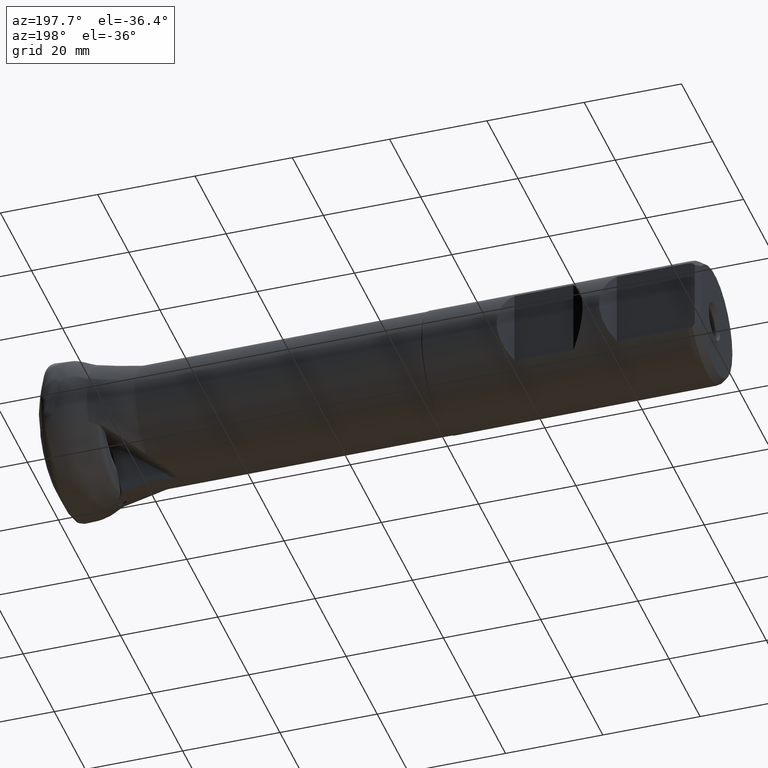
[diagram: clean part render]
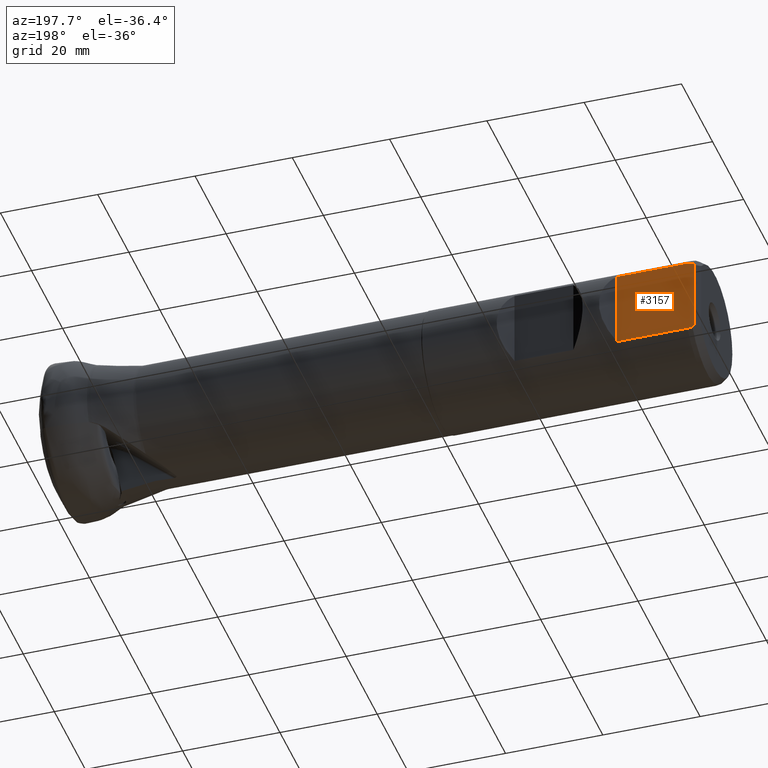
[diagram: same view with one face highlighted and labeled with its STEP entity id]
A machine part, auxiliary view. The second image highlights one B-rep face of the part: STEP entity #3157.
In plain terms, the highlighted planar face has unit normal (0, -1, 0).
Its self-contained STEP definition (entity closure, byte-faithful):
#12 = ORIENTED_EDGE ( 'NONE', *, *, #1830, .F. ) ;
#376 = CARTESIAN_POINT ( 'NONE',  ( -133.4052591770394500, 9.700000000000013500, 7.724635913750174300 ) ) ;
#420 = CARTESIAN_POINT ( 'NONE',  ( -133.5739917641605500, 9.700000000000013500, 7.544063512784151500 ) ) ;
#476 = ORIENTED_EDGE ( 'NONE', *, *, #2689, .F. ) ;
#496 = EDGE_LOOP ( 'NONE', ( #476, #2586, #12, #3966, #5950, #4550, #3928, #5791 ) ) ;
#733 = EDGE_CURVE ( 'NONE', #3868, #4274, #2509, .T. ) ;
#868 = CARTESIAN_POINT ( 'NONE',  ( -133.9052591770394500, 9.700000000000013500, 7.177356368778379000 ) ) ;
#1072 = LINE ( 'NONE', #4202, #5765 ) ;
#1143 = CARTESIAN_POINT ( 'NONE',  ( -132.7386441568087900, 9.700000000000013500, 7.831304577633790800 ) ) ;
#1195 = CARTESIAN_POINT ( 'NONE',  ( -133.0719785402211500, 9.700000000000013500, 7.778135909642421600 ) ) ;
#1206 = CARTESIAN_POINT ( 'NONE',  ( -133.4052591770394500, 9.700000000000013500, 7.724635913750174300 ) ) ;
#1211 = CARTESIAN_POINT ( 'NONE',  ( -132.4052591770392000, 9.700000000000020600, 7.884161337770784400 ) ) ;
#1281 = B_SPLINE_CURVE_WITH_KNOTS ( 'NONE', 3,
 ( #4594, #4538, #4522, #4506 ),
 .UNSPECIFIED., .F., .F.,
 ( 4, 4 ),
 ( 0.01937324663784086700, 0.02011357443876819400 ),
 .UNSPECIFIED. ) ;
#1398 = EDGE_CURVE ( 'NONE', #2560, #5427, #5463, .T. ) ;
#1520 = VECTOR ( 'NONE', #4484, 1000.000000000000000 ) ;
#1599 = EDGE_CURVE ( 'Kante182', #2927, #2643, #4388, .T. ) ;
#1830 = EDGE_CURVE ( 'NONE', #2560, #2927, #4899, .T. ) ;
#2041 = CARTESIAN_POINT ( 'NONE',  ( -132.4052591770392000, 9.700000000000020600, 7.884161337770784400 ) ) ;
#2113 = CARTESIAN_POINT ( 'NONE',  ( -133.4052591770394500, 9.700000000000013500, 7.724635913750174300 ) ) ;
#2220 = VECTOR ( 'NONE', #2487, 1000.000000000000000 ) ;
#2487 = DIRECTION ( 'NONE',  ( -0.0000000000000000000, -0.0000000000000000000, 1.000000000000000000 ) ) ;
#2509 = B_SPLINE_CURVE_WITH_KNOTS ( 'NONE', 3,
 ( #1206, #1195, #1143, #1211 ),
 .UNSPECIFIED., .F., .F.,
 ( 4, 4 ),
 ( 0.02156378377327071800, 0.02257556955679657100 ),
 .UNSPECIFIED. ) ;
#2539 = CARTESIAN_POINT ( 'NONE',  ( -133.9052591770394500, 9.700000000000013500, -35.00000000000000000 ) ) ;
#2560 = VERTEX_POINT ( 'NONE', #3598 ) ;
#2586 = ORIENTED_EDGE ( 'NONE', *, *, #1599, .F. ) ;
#2643 = VERTEX_POINT ( 'NONE', #4819 ) ;
#2649 = LINE ( 'NONE', #2539, #2220 ) ;
#2651 = CARTESIAN_POINT ( 'NONE',  ( -117.9052591770394700, 9.700000000000015300, -7.884161337770788000 ) ) ;
#2666 = CARTESIAN_POINT ( 'NONE',  ( -74.90525917703946800, 9.700000000000020600, -7.884161337770784400 ) ) ;
#2689 = EDGE_CURVE ( 'NONE', #2643, #4274, #1072, .T. ) ;
#2747 = DIRECTION ( 'NONE',  ( 1.000000000000000000, 0.0000000000000000000, 0.0000000000000000000 ) ) ;
#2927 = VERTEX_POINT ( 'NONE', #2651 ) ;
#3157 = ADVANCED_FACE ( 'NONE', ( #4396 ), #5700, .F. ) ;
#3306 = VERTEX_POINT ( 'NONE', #5424 ) ;
#3528 = EDGE_CURVE ( 'Kante183', #3306, #5300, #2649, .T. ) ;
#3598 = CARTESIAN_POINT ( 'NONE',  ( -132.4052591770392000, 9.700000000000020600, -7.884161337770784400 ) ) ;
#3636 = CARTESIAN_POINT ( 'NONE',  ( -133.7407601716286400, 9.700000000000013500, 7.361728307720987600 ) ) ;
#3747 = DIRECTION ( 'NONE',  ( 1.000000000000000000, 1.084202172485504300E-016, 0.0000000000000000000 ) ) ;
#3757 = CARTESIAN_POINT ( 'NONE',  ( -133.0719907667367500, 9.700000000000013500, -7.778133946976539400 ) ) ;
#3855 = DIRECTION ( 'NONE',  ( 1.084202172485504300E-016, -1.000000000000000000, 0.0000000000000000000 ) ) ;
#3868 = VERTEX_POINT ( 'NONE', #2113 ) ;
#3928 = ORIENTED_EDGE ( 'NONE', *, *, #4915, .T. ) ;
#3966 = ORIENTED_EDGE ( 'NONE', *, *, #1398, .T. ) ;
#3997 = EDGE_CURVE ( 'NONE', #5427, #3306, #1281, .T. ) ;
#4163 = CARTESIAN_POINT ( 'NONE',  ( -132.7386561443100300, 9.700000000000013500, -7.831302677066831900 ) ) ;
#4201 = CARTESIAN_POINT ( 'NONE',  ( -132.4052591770392000, 9.700000000000020600, -7.884161337770784400 ) ) ;
#4202 = CARTESIAN_POINT ( 'NONE',  ( -74.90525917703946800, 9.700000000000020600, 7.884161337770784400 ) ) ;
#4229 = DIRECTION ( 'NONE',  ( -1.000000000000000000, -0.0000000000000000000, -0.0000000000000000000 ) ) ;
#4274 = VERTEX_POINT ( 'NONE', #2041 ) ;
#4388 = LINE ( 'NONE', #5589, #1520 ) ;
#4396 = FACE_OUTER_BOUND ( 'NONE', #496, .T. ) ;
#4484 = DIRECTION ( 'NONE',  ( -0.0000000000000000000, -0.0000000000000000000, 1.000000000000000000 ) ) ;
#4506 = CARTESIAN_POINT ( 'NONE',  ( -133.9052591770394500, 9.700000000000013500, -7.177356368778379000 ) ) ;
#4522 = CARTESIAN_POINT ( 'NONE',  ( -133.7409407146315600, 9.700000000000013500, -7.361525953527950300 ) ) ;
#4538 = CARTESIAN_POINT ( 'NONE',  ( -133.5740701924605100, 9.700000000000013500, -7.543979581240939100 ) ) ;
#4550 = ORIENTED_EDGE ( 'NONE', *, *, #3528, .T. ) ;
#4594 = CARTESIAN_POINT ( 'NONE',  ( -133.4052591770394500, 9.700000000000013500, -7.724635913750174300 ) ) ;
#4708 = CARTESIAN_POINT ( 'NONE',  ( -117.9052591770394700, 9.700000000000015300, -35.00000000000000000 ) ) ;
#4723 = CARTESIAN_POINT ( 'NONE',  ( -133.4052591770394500, 9.700000000000013500, -7.724635913750174300 ) ) ;
#4819 = CARTESIAN_POINT ( 'NONE',  ( -117.9052591770394700, 9.700000000000015300, 7.884161337770770200 ) ) ;
#4899 = LINE ( 'NONE', #2666, #5096 ) ;
#4915 = EDGE_CURVE ( 'NONE', #5300, #3868, #5372, .T. ) ;
#5081 = CARTESIAN_POINT ( 'NONE',  ( -133.9052591770394500, 9.700000000000013500, 7.177356368778379000 ) ) ;
#5096 = VECTOR ( 'NONE', #2747, 1000.000000000000000 ) ;
#5207 = AXIS2_PLACEMENT_3D ( 'NONE', #4708, #3855, #3747 ) ;
#5233 = CARTESIAN_POINT ( 'NONE',  ( -133.4052591770394500, 9.700000000000013500, -7.724635913750174300 ) ) ;
#5300 = VERTEX_POINT ( 'NONE', #5081 ) ;
#5372 = B_SPLINE_CURVE_WITH_KNOTS ( 'NONE', 3,
 ( #868, #3636, #420, #376 ),
 .UNSPECIFIED., .F., .F.,
 ( 4, 4 ),
 ( 0.03649721749932394200, 0.03724552725762934900 ),
 .UNSPECIFIED. ) ;
#5424 = CARTESIAN_POINT ( 'NONE',  ( -133.9052591770394500, 9.700000000000013500, -7.177356368778379000 ) ) ;
#5427 = VERTEX_POINT ( 'NONE', #4723 ) ;
#5463 = B_SPLINE_CURVE_WITH_KNOTS ( 'NONE', 3,
 ( #4201, #4163, #3757, #5233 ),
 .UNSPECIFIED., .F., .F.,
 ( 4, 4 ),
 ( 0.02300155130761209800, 0.02401414385632079400 ),
 .UNSPECIFIED. ) ;
#5589 = CARTESIAN_POINT ( 'NONE',  ( -117.9052591770394700, 9.700000000000015300, -35.00000000000000000 ) ) ;
#5700 = PLANE ( 'NONE',  #5207 ) ;
#5765 = VECTOR ( 'NONE', #4229, 1000.000000000000000 ) ;
#5791 = ORIENTED_EDGE ( 'NONE', *, *, #733, .T. ) ;
#5950 = ORIENTED_EDGE ( 'NONE', *, *, #3997, .T. ) ;